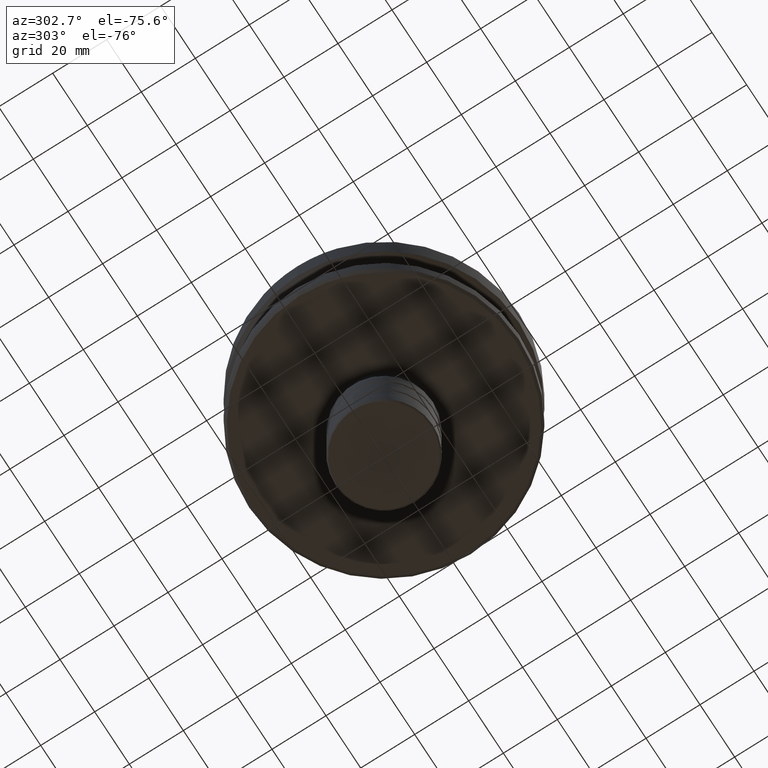
[diagram: clean part render]
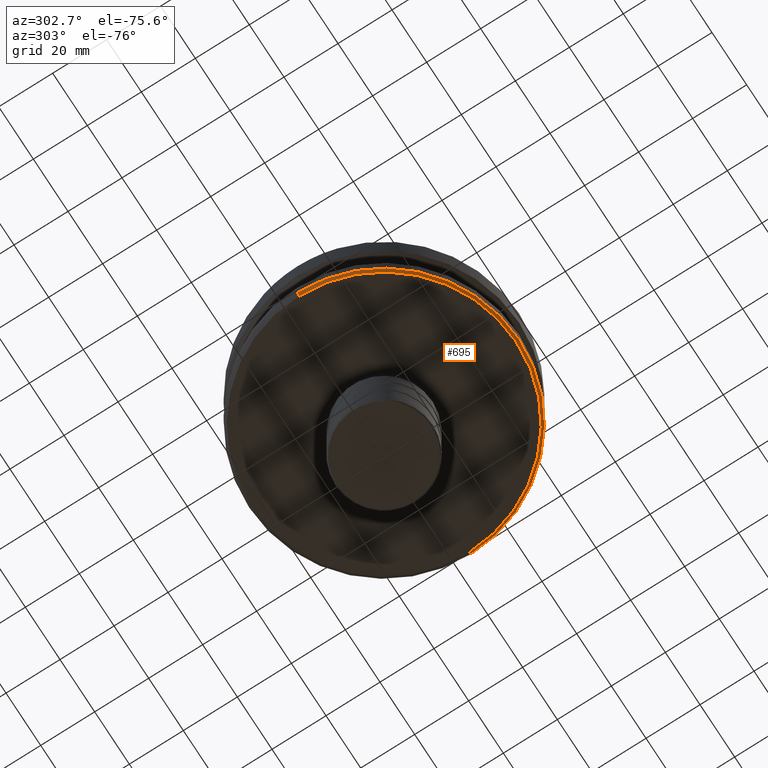
[diagram: same view with one face highlighted and labeled with its STEP entity id]
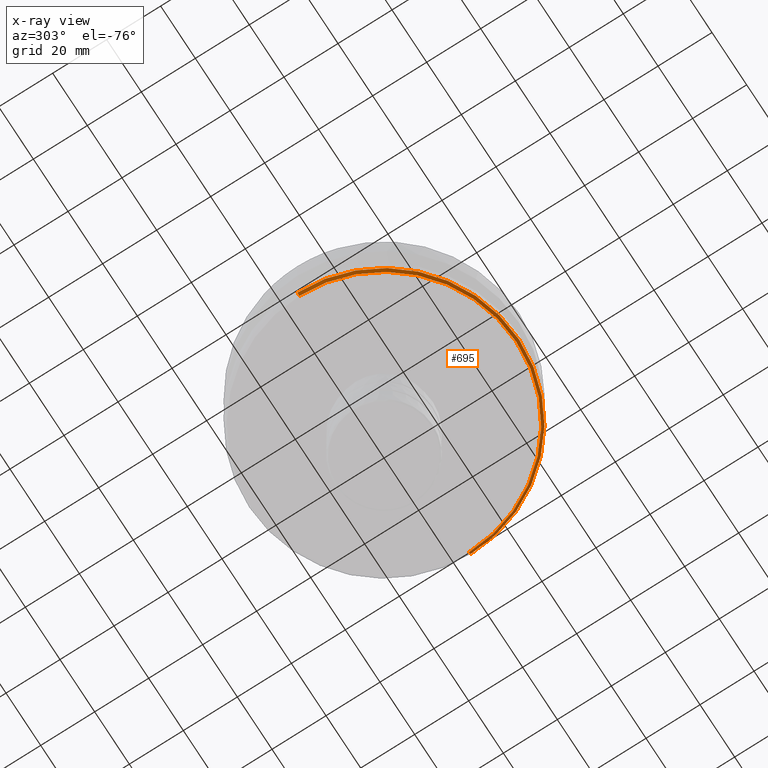
[diagram: x-ray of the same camera — body ghosted, the highlighted face saturated]
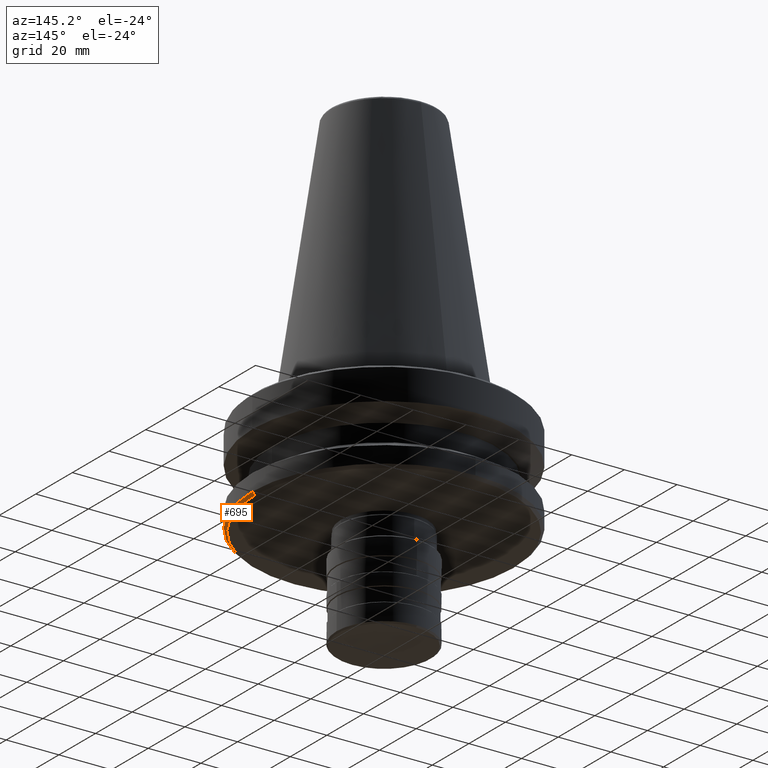
[diagram: same view with one face highlighted and labeled with its STEP entity id]
A machine part, auxiliary view. The second image highlights one B-rep face of the part: STEP entity #695.
The next image is the same camera in x-ray: the body ghosted, the highlighted face saturated — about 0% of this face is hidden behind the body in this view.
A second angle (auxiliary view) of the same face is appended — the face is thin or edge-on in the first view.
In plain terms, the highlighted conical surface has half-angle 45 deg.
Its self-contained STEP definition (entity closure, byte-faithful):
#16 = CIRCLE ( 'NONE', #1524, 48.99999999999996400 ) ;
#30 = VERTEX_POINT ( 'NONE', #2032 ) ;
#157 = LINE ( 'NONE', #2011, #1487 ) ;
#276 = AXIS2_PLACEMENT_3D ( 'NONE', #431, #428, #424 ) ;
#353 = ORIENTED_EDGE ( 'NONE', *, *, #924, .F. ) ;
#386 = AXIS2_PLACEMENT_3D ( 'NONE', #580, #555, #572 ) ;
#424 = DIRECTION ( 'NONE',  ( 0.0000000000000000000, -1.000000000000000000, 0.0000000000000000000 ) ) ;
#428 = DIRECTION ( 'NONE',  ( 0.0000000000000000000, -6.938893903907228400E-017, 1.000000000000000000 ) ) ;
#431 = CARTESIAN_POINT ( 'NONE',  ( 0.0000000000000000000, -5.296307347064898600E-030, -36.99999999999992200 ) ) ;
#438 = EDGE_CURVE ( 'NONE', #2057, #30, #16, .T. ) ;
#525 = EDGE_CURVE ( 'NONE', #1992, #673, #831, .T. ) ;
#555 = DIRECTION ( 'NONE',  ( 0.0000000000000000000, 0.0000000000000000000, 1.000000000000000000 ) ) ;
#572 = DIRECTION ( 'NONE',  ( 1.000000000000000000, 0.0000000000000000000, 0.0000000000000000000 ) ) ;
#577 = CARTESIAN_POINT ( 'NONE',  ( 0.0000000000000000000, -50.00000000000000000, -36.99999999999992200 ) ) ;
#580 = CARTESIAN_POINT ( 'NONE',  ( 0.0000000000000000000, 0.0000000000000000000, -36.99999999999992200 ) ) ;
#619 = EDGE_CURVE ( 'NONE', #30, #1809, #2087, .T. ) ;
#620 = CIRCLE ( 'NONE', #276, 50.00000000000000000 ) ;
#665 = DIRECTION ( 'NONE',  ( 0.7071067811865474600, 0.0000000000000000000, 0.7071067811865475700 ) ) ;
#673 = VERTEX_POINT ( 'NONE', #577 ) ;
#695 = ADVANCED_FACE ( 'NONE', ( #1949 ), #1522, .T. ) ;
#702 = CARTESIAN_POINT ( 'NONE',  ( 50.00000000000007800, 0.0000000000000000000, -36.99999999999992200 ) ) ;
#796 = DIRECTION ( 'NONE',  ( 0.0000000000000000000, -1.000000000000000000, 0.0000000000000000000 ) ) ;
#800 = DIRECTION ( 'NONE',  ( 0.0000000000000000000, -6.938893903907228400E-017, 1.000000000000000000 ) ) ;
#805 = CARTESIAN_POINT ( 'NONE',  ( 0.0000000000000000000, -5.296307347064898600E-030, -36.99999999999992200 ) ) ;
#831 = CIRCLE ( 'NONE', #1613, 50.00000000000000000 ) ;
#924 = EDGE_CURVE ( 'NONE', #673, #1809, #620, .T. ) ;
#966 = DIRECTION ( 'NONE',  ( 1.000000000000000000, 0.0000000000000000000, 0.0000000000000000000 ) ) ;
#971 = DIRECTION ( 'NONE',  ( 0.0000000000000000000, 0.0000000000000000000, 1.000000000000000000 ) ) ;
#975 = CARTESIAN_POINT ( 'NONE',  ( 0.0000000000000000000, 0.0000000000000000000, -38.00000000000003600 ) ) ;
#1136 = ORIENTED_EDGE ( 'NONE', *, *, #438, .T. ) ;
#1266 = ORIENTED_EDGE ( 'NONE', *, *, #619, .T. ) ;
#1328 = ORIENTED_EDGE ( 'NONE', *, *, #525, .F. ) ;
#1360 = CARTESIAN_POINT ( 'NONE',  ( -48.99999999999996400, 6.062001655779400900E-015, -38.00000000000003600 ) ) ;
#1458 = CARTESIAN_POINT ( 'NONE',  ( -50.00000000000007800, 6.123233995736775600E-015, -36.99999999999992200 ) ) ;
#1460 = EDGE_LOOP ( 'NONE', ( #2078, #1136, #1266, #353, #1328 ) ) ;
#1487 = VECTOR ( 'NONE', #1561, 1000.000000000000000 ) ;
#1522 = CONICAL_SURFACE ( 'NONE', #386, 50.00000000000007800, 0.7853981633974482800 ) ;
#1524 = AXIS2_PLACEMENT_3D ( 'NONE', #975, #971, #966 ) ;
#1561 = DIRECTION ( 'NONE',  ( -0.7071067811865474600, 8.659560562354931600E-017, 0.7071067811865475700 ) ) ;
#1565 = CARTESIAN_POINT ( 'NONE',  ( 50.00000000000007800, 0.0000000000000000000, -36.99999999999992200 ) ) ;
#1613 = AXIS2_PLACEMENT_3D ( 'NONE', #805, #800, #796 ) ;
#1809 = VERTEX_POINT ( 'NONE', #1565 ) ;
#1949 = FACE_OUTER_BOUND ( 'NONE', #1460, .T. ) ;
#1955 = EDGE_CURVE ( 'NONE', #2057, #1992, #157, .T. ) ;
#1992 = VERTEX_POINT ( 'NONE', #1458 ) ;
#2011 = CARTESIAN_POINT ( 'NONE',  ( -50.00000000000007800, 6.123233995736775600E-015, -36.99999999999992200 ) ) ;
#2032 = CARTESIAN_POINT ( 'NONE',  ( 48.99999999999996400, 0.0000000000000000000, -38.00000000000003600 ) ) ;
#2057 = VERTEX_POINT ( 'NONE', #1360 ) ;
#2078 = ORIENTED_EDGE ( 'NONE', *, *, #1955, .F. ) ;
#2087 = LINE ( 'NONE', #702, #2128 ) ;
#2128 = VECTOR ( 'NONE', #665, 1000.000000000000000 ) ;